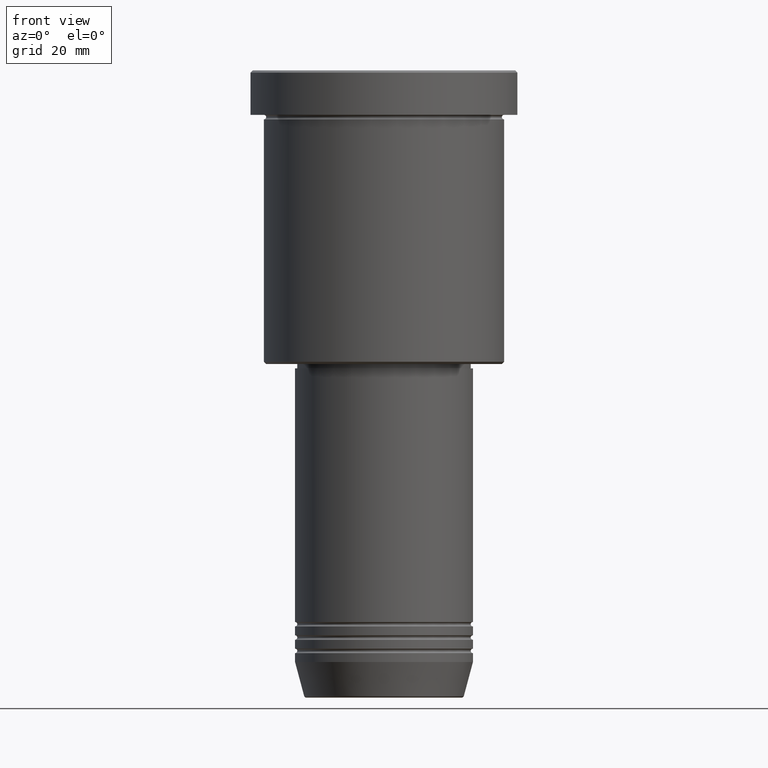
[diagram: clean part render]
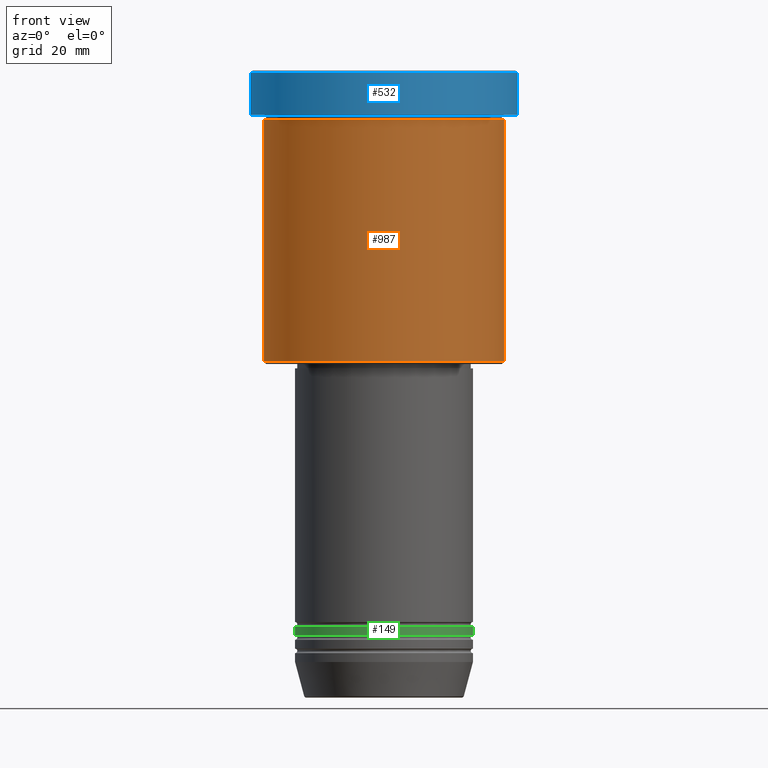
[diagram: same view with three faces highlighted in distinct colors, each labeled with its STEP entity id]
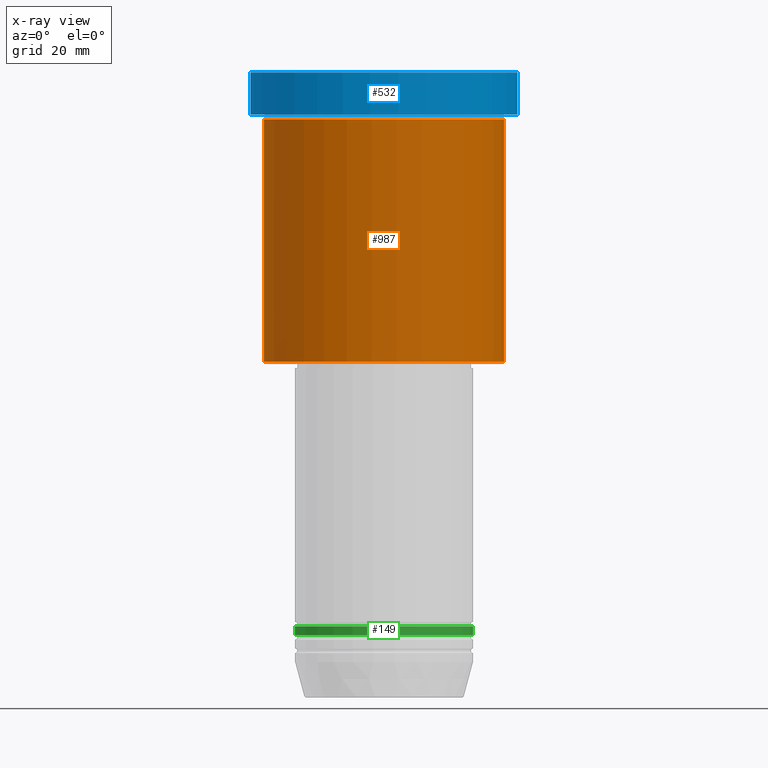
[diagram: x-ray of the same camera — body ghosted, the three highlighted faces saturated]
A machine part, front view with three faces highlighted in distinct colors.
The next image is the same camera in x-ray (body ghosted, the three faces saturated) — at least one of them is partly hidden behind the body in this view.
Their STEP definitions:

[orange] entity #987 — the highlighted cylindrical surface (partial cylindrical patch) has radius 27 mm, axis along (-0, -0, 1).
#22 = CYLINDRICAL_SURFACE ( 'NONE', #358, 27.00000000000000355 ) ;
#61 = ORIENTED_EDGE ( 'NONE', *, *, #651, .F. ) ;
#114 = FACE_OUTER_BOUND ( 'NONE', #1159, .T. ) ;
#119 = AXIS2_PLACEMENT_3D ( 'NONE', #314, #1140, #781 ) ;
#161 = CARTESIAN_POINT ( 'NONE',  ( -27.00000000000000355, 3.306546357697854128E-15, 0.000000000000000000 ) ) ;
#190 = CARTESIAN_POINT ( 'NONE',  ( 27.00000000000000355, 0.000000000000000000, -65.50000000000000000 ) ) ;
#207 = DIRECTION ( 'NONE',  ( -0.000000000000000000, -0.000000000000000000, 1.000000000000000000 ) ) ;
#244 = CIRCLE ( 'NONE', #263, 27.00000000000000355 ) ;
#260 = VERTEX_POINT ( 'NONE', #455 ) ;
#263 = AXIS2_PLACEMENT_3D ( 'NONE', #738, #463, #1089 ) ;
#275 = EDGE_CURVE ( 'NONE', #1126, #664, #244, .T. ) ;
#306 = VECTOR ( 'NONE', #1026, 1000.000000000000000 ) ;
#314 = CARTESIAN_POINT ( 'NONE',  ( 0.000000000000000000, 0.000000000000000000, -10.99999999999999289 ) ) ;
#358 = AXIS2_PLACEMENT_3D ( 'NONE', #736, #207, #931 ) ;
#455 = CARTESIAN_POINT ( 'NONE',  ( -27.00000000000000355, 3.306546357697854128E-15, -10.99999999999999289 ) ) ;
#463 = DIRECTION ( 'NONE',  ( -0.000000000000000000, -0.000000000000000000, 1.000000000000000000 ) ) ;
#507 = CARTESIAN_POINT ( 'NONE',  ( -27.00000000000000355, 3.306546357697854128E-15, -65.50000000000000000 ) ) ;
#607 = LINE ( 'NONE', #1151, #306 ) ;
#651 = EDGE_CURVE ( 'NONE', #1126, #260, #745, .T. ) ;
#664 = VERTEX_POINT ( 'NONE', #190 ) ;
#699 = VECTOR ( 'NONE', #922, 1000.000000000000000 ) ;
#736 = CARTESIAN_POINT ( 'NONE',  ( 0.000000000000000000, 0.000000000000000000, 0.000000000000000000 ) ) ;
#738 = CARTESIAN_POINT ( 'NONE',  ( 0.000000000000000000, 0.000000000000000000, -65.50000000000000000 ) ) ;
#745 = LINE ( 'NONE', #161, #699 ) ;
#773 = ORIENTED_EDGE ( 'NONE', *, *, #1050, .F. ) ;
#781 = DIRECTION ( 'NONE',  ( 1.000000000000000000, 0.000000000000000000, 0.000000000000000000 ) ) ;
#807 = VERTEX_POINT ( 'NONE', #1172 ) ;
#922 = DIRECTION ( 'NONE',  ( -0.000000000000000000, -0.000000000000000000, 1.000000000000000000 ) ) ;
#931 = DIRECTION ( 'NONE',  ( 1.000000000000000000, 0.000000000000000000, 0.000000000000000000 ) ) ;
#987 = ADVANCED_FACE ( 'NONE', ( #114 ), #22, .T. ) ;
#1009 = ORIENTED_EDGE ( 'NONE', *, *, #1090, .T. ) ;
#1026 = DIRECTION ( 'NONE',  ( -0.000000000000000000, -0.000000000000000000, 1.000000000000000000 ) ) ;
#1027 = ORIENTED_EDGE ( 'NONE', *, *, #275, .T. ) ;
#1050 = EDGE_CURVE ( 'NONE', #260, #807, #1149, .T. ) ;
#1089 = DIRECTION ( 'NONE',  ( -1.000000000000000000, 0.000000000000000000, 0.000000000000000000 ) ) ;
#1090 = EDGE_CURVE ( 'NONE', #664, #807, #607, .T. ) ;
#1126 = VERTEX_POINT ( 'NONE', #507 ) ;
#1140 = DIRECTION ( 'NONE',  ( -0.000000000000000000, -0.000000000000000000, 1.000000000000000000 ) ) ;
#1149 = CIRCLE ( 'NONE', #119, 27.00000000000000355 ) ;
#1151 = CARTESIAN_POINT ( 'NONE',  ( 27.00000000000000355, 0.000000000000000000, 0.000000000000000000 ) ) ;
#1159 = EDGE_LOOP ( 'NONE', ( #61, #1027, #1009, #773 ) ) ;
#1172 = CARTESIAN_POINT ( 'NONE',  ( 27.00000000000000355, 0.000000000000000000, -10.99999999999999289 ) ) ;

[blue] entity #532 — the highlighted cylindrical surface (partial cylindrical patch) has radius 30 mm, axis along (-0, -0, 1).
#1 = AXIS2_PLACEMENT_3D ( 'NONE', #394, #303, #383 ) ;
#8 = CYLINDRICAL_SURFACE ( 'NONE', #152, 30.00000000000000000 ) ;
#100 = CARTESIAN_POINT ( 'NONE',  ( 30.00000000000000000, 0.000000000000000000, -9.999999999999992895 ) ) ;
#152 = AXIS2_PLACEMENT_3D ( 'NONE', #1105, #1175, #812 ) ;
#172 = EDGE_LOOP ( 'NONE', ( #930, #1148, #863, #1152 ) ) ;
#211 = AXIS2_PLACEMENT_3D ( 'NONE', #671, #944, #375 ) ;
#282 = VERTEX_POINT ( 'NONE', #100 ) ;
#303 = DIRECTION ( 'NONE',  ( -0.000000000000000000, -0.000000000000000000, 1.000000000000000000 ) ) ;
#309 = EDGE_CURVE ( 'NONE', #782, #282, #518, .T. ) ;
#310 = CARTESIAN_POINT ( 'NONE',  ( 30.00000000000000000, 0.000000000000000000, 0.000000000000000000 ) ) ;
#322 = EDGE_CURVE ( 'NONE', #618, #769, #851, .T. ) ;
#374 = CARTESIAN_POINT ( 'NONE',  ( -30.00000000000000000, 3.673940397442059178E-15, -9.999999999999992895 ) ) ;
#375 = DIRECTION ( 'NONE',  ( 1.000000000000000000, 0.000000000000000000, 0.000000000000000000 ) ) ;
#383 = DIRECTION ( 'NONE',  ( 1.000000000000000000, 0.000000000000000000, 0.000000000000000000 ) ) ;
#394 = CARTESIAN_POINT ( 'NONE',  ( 0.000000000000000000, 0.000000000000000000, -9.999999999999992895 ) ) ;
#503 = VECTOR ( 'NONE', #778, 1000.000000000000000 ) ;
#513 = EDGE_CURVE ( 'NONE', #282, #618, #689, .T. ) ;
#518 = CIRCLE ( 'NONE', #1, 30.00000000000000000 ) ;
#532 = ADVANCED_FACE ( 'NONE', ( #650 ), #8, .T. ) ;
#552 = LINE ( 'NONE', #636, #776 ) ;
#555 = CARTESIAN_POINT ( 'NONE',  ( -30.00000000000000000, 3.673940397442059178E-15, -0.4999999999999935052 ) ) ;
#609 = EDGE_CURVE ( 'NONE', #782, #769, #552, .T. ) ;
#618 = VERTEX_POINT ( 'NONE', #992 ) ;
#636 = CARTESIAN_POINT ( 'NONE',  ( -30.00000000000000000, 3.673940397442059178E-15, 0.000000000000000000 ) ) ;
#650 = FACE_OUTER_BOUND ( 'NONE', #172, .T. ) ;
#671 = CARTESIAN_POINT ( 'NONE',  ( 0.000000000000000000, 0.000000000000000000, -0.4999999999999935052 ) ) ;
#689 = LINE ( 'NONE', #310, #503 ) ;
#769 = VERTEX_POINT ( 'NONE', #555 ) ;
#776 = VECTOR ( 'NONE', #911, 1000.000000000000000 ) ;
#778 = DIRECTION ( 'NONE',  ( -0.000000000000000000, -0.000000000000000000, 1.000000000000000000 ) ) ;
#782 = VERTEX_POINT ( 'NONE', #374 ) ;
#812 = DIRECTION ( 'NONE',  ( 1.000000000000000000, 0.000000000000000000, 0.000000000000000000 ) ) ;
#851 = CIRCLE ( 'NONE', #211, 30.00000000000000000 ) ;
#863 = ORIENTED_EDGE ( 'NONE', *, *, #513, .T. ) ;
#911 = DIRECTION ( 'NONE',  ( -0.000000000000000000, -0.000000000000000000, 1.000000000000000000 ) ) ;
#930 = ORIENTED_EDGE ( 'NONE', *, *, #609, .F. ) ;
#944 = DIRECTION ( 'NONE',  ( 0.000000000000000000, 0.000000000000000000, -1.000000000000000000 ) ) ;
#992 = CARTESIAN_POINT ( 'NONE',  ( 30.00000000000000000, 0.000000000000000000, -0.4999999999999935052 ) ) ;
#1105 = CARTESIAN_POINT ( 'NONE',  ( 0.000000000000000000, 0.000000000000000000, 0.000000000000000000 ) ) ;
#1148 = ORIENTED_EDGE ( 'NONE', *, *, #309, .T. ) ;
#1152 = ORIENTED_EDGE ( 'NONE', *, *, #322, .T. ) ;
#1175 = DIRECTION ( 'NONE',  ( -0.000000000000000000, -0.000000000000000000, 1.000000000000000000 ) ) ;

[green] entity #149 — the highlighted cylindrical surface (partial cylindrical patch) has radius 20 mm, axis along (-0, -0, 1).
#43 = DIRECTION ( 'NONE',  ( -0.000000000000000000, -0.000000000000000000, 1.000000000000000000 ) ) ;
#65 = EDGE_CURVE ( 'NONE', #752, #923, #474, .T. ) ;
#96 = LINE ( 'NONE', #280, #542 ) ;
#125 = CARTESIAN_POINT ( 'NONE',  ( 0.000000000000000000, 0.000000000000000000, -124.9999999999999858 ) ) ;
#135 = ORIENTED_EDGE ( 'NONE', *, *, #65, .T. ) ;
#149 = ADVANCED_FACE ( 'NONE', ( #1154 ), #331, .T. ) ;
#157 = DIRECTION ( 'NONE',  ( 1.000000000000000000, 0.000000000000000000, 0.000000000000000000 ) ) ;
#226 = DIRECTION ( 'NONE',  ( 1.000000000000000000, 0.000000000000000000, 0.000000000000000000 ) ) ;
#239 = CARTESIAN_POINT ( 'NONE',  ( 0.000000000000000000, 0.000000000000000000, -126.9999999999999716 ) ) ;
#246 = CARTESIAN_POINT ( 'NONE',  ( 0.000000000000000000, 0.000000000000000000, 0.000000000000000000 ) ) ;
#258 = EDGE_CURVE ( 'NONE', #752, #409, #900, .T. ) ;
#267 = CIRCLE ( 'NONE', #884, 20.00000000000000000 ) ;
#280 = CARTESIAN_POINT ( 'NONE',  ( 20.00000000000000000, 0.000000000000000000, 0.000000000000000000 ) ) ;
#331 = CYLINDRICAL_SURFACE ( 'NONE', #975, 20.00000000000000000 ) ;
#409 = VERTEX_POINT ( 'NONE', #750 ) ;
#462 = CARTESIAN_POINT ( 'NONE',  ( -20.00000000000000000, 2.449293598294706513E-15, -126.9999999999999716 ) ) ;
#474 = CIRCLE ( 'NONE', #624, 20.00000000000000000 ) ;
#475 = VERTEX_POINT ( 'NONE', #954 ) ;
#530 = EDGE_LOOP ( 'NONE', ( #1022, #135, #1072, #848 ) ) ;
#542 = VECTOR ( 'NONE', #1011, 1000.000000000000000 ) ;
#563 = DIRECTION ( 'NONE',  ( -0.000000000000000000, -0.000000000000000000, 1.000000000000000000 ) ) ;
#574 = CARTESIAN_POINT ( 'NONE',  ( 20.00000000000000000, 0.000000000000000000, -126.9999999999999716 ) ) ;
#622 = DIRECTION ( 'NONE',  ( -0.000000000000000000, -0.000000000000000000, 1.000000000000000000 ) ) ;
#624 = AXIS2_PLACEMENT_3D ( 'NONE', #239, #969, #226 ) ;
#627 = DIRECTION ( 'NONE',  ( 1.000000000000000000, 0.000000000000000000, 0.000000000000000000 ) ) ;
#661 = EDGE_CURVE ( 'NONE', #923, #475, #96, .T. ) ;
#679 = EDGE_CURVE ( 'NONE', #409, #475, #267, .T. ) ;
#712 = VECTOR ( 'NONE', #563, 1000.000000000000000 ) ;
#750 = CARTESIAN_POINT ( 'NONE',  ( -20.00000000000000000, 2.449293598294706513E-15, -124.9999999999999858 ) ) ;
#752 = VERTEX_POINT ( 'NONE', #462 ) ;
#848 = ORIENTED_EDGE ( 'NONE', *, *, #679, .F. ) ;
#884 = AXIS2_PLACEMENT_3D ( 'NONE', #125, #43, #627 ) ;
#900 = LINE ( 'NONE', #1097, #712 ) ;
#923 = VERTEX_POINT ( 'NONE', #574 ) ;
#954 = CARTESIAN_POINT ( 'NONE',  ( 20.00000000000000000, 0.000000000000000000, -124.9999999999999858 ) ) ;
#969 = DIRECTION ( 'NONE',  ( -0.000000000000000000, -0.000000000000000000, 1.000000000000000000 ) ) ;
#975 = AXIS2_PLACEMENT_3D ( 'NONE', #246, #622, #157 ) ;
#1011 = DIRECTION ( 'NONE',  ( -0.000000000000000000, -0.000000000000000000, 1.000000000000000000 ) ) ;
#1022 = ORIENTED_EDGE ( 'NONE', *, *, #258, .F. ) ;
#1072 = ORIENTED_EDGE ( 'NONE', *, *, #661, .T. ) ;
#1097 = CARTESIAN_POINT ( 'NONE',  ( -20.00000000000000000, 2.449293598294706513E-15, 0.000000000000000000 ) ) ;
#1154 = FACE_OUTER_BOUND ( 'NONE', #530, .T. ) ;